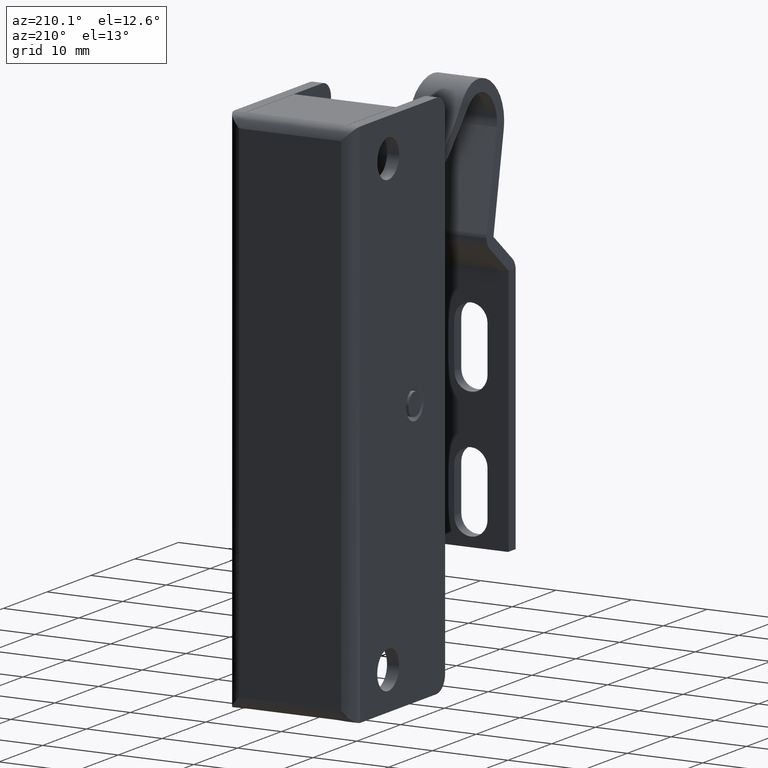
[diagram: clean part render]
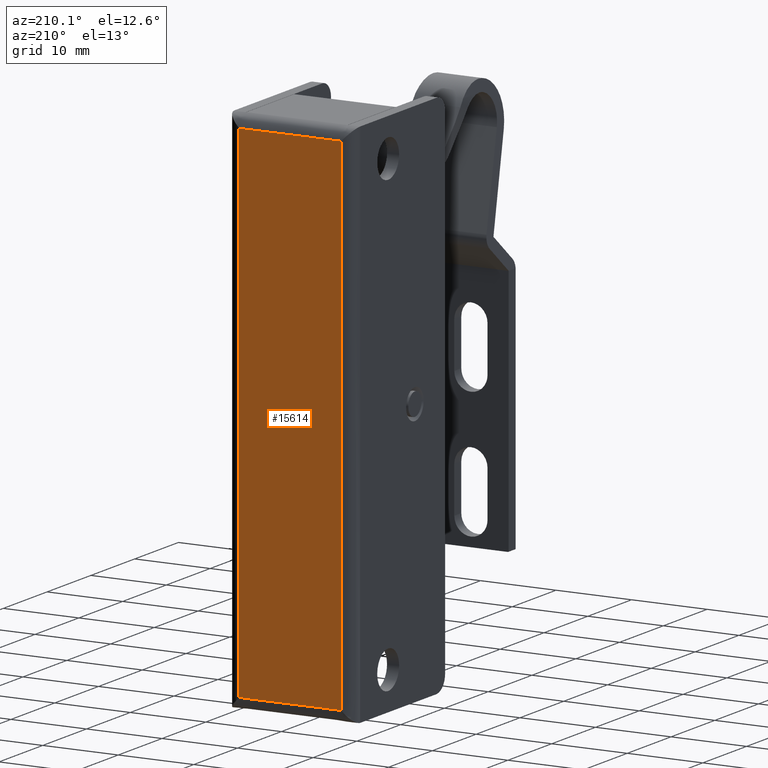
[diagram: same view with one face highlighted and labeled with its STEP entity id]
A machine part, auxiliary view. The second image highlights one B-rep face of the part: STEP entity #15614.
In plain terms, the highlighted face is a freeform B-spline surface patch.
Its self-contained STEP definition (entity closure, byte-faithful):
#14493=CARTESIAN_POINT('',(6.749997000000000,8.0,3.399999999999960));
#14494=VERTEX_POINT('',#14493);
#14508=CARTESIAN_POINT('',(-6.749997000000000,8.0,3.399999999999960));
#14509=VERTEX_POINT('',#14508);
#14510=CARTESIAN_POINT('',(-6.749997000000000,8.0,3.399999999999960));
#14511=CARTESIAN_POINT('',(6.749997000000000,8.0,3.399999999999960));
#14512=QUASI_UNIFORM_CURVE('',1,(#14510,#14511),.UNSPECIFIED.,.F.,.U.);
#14513=EDGE_CURVE('',#14509,#14494,#14512,.T.);
#14566=CARTESIAN_POINT('',(-6.749997000000000,8.0,-63.399999999999999));
#14567=VERTEX_POINT('',#14566);
#14585=CARTESIAN_POINT('',(6.749997000000000,8.0,-63.399999999999999));
#14586=VERTEX_POINT('',#14585);
#14587=CARTESIAN_POINT('',(6.749997000000000,8.0,-63.399999999999999));
#14588=CARTESIAN_POINT('',(-6.749997000000000,8.0,-63.399999999999999));
#14589=QUASI_UNIFORM_CURVE('',1,(#14587,#14588),.UNSPECIFIED.,.F.,.U.);
#14590=EDGE_CURVE('',#14586,#14567,#14589,.T.);
#14723=CARTESIAN_POINT('',(6.749997000000000,8.0,3.399999999999960));
#14724=CARTESIAN_POINT('',(6.749997000000000,8.0,-63.399999999999999));
#14725=QUASI_UNIFORM_CURVE('',1,(#14723,#14724),.UNSPECIFIED.,.F.,.U.);
#14726=EDGE_CURVE('',#14494,#14586,#14725,.T.);
#14746=CARTESIAN_POINT('',(-6.749997000000000,8.0,-63.399999999999999));
#14747=CARTESIAN_POINT('',(-6.749997000000000,8.0,3.399999999999960));
#14748=QUASI_UNIFORM_CURVE('',1,(#14746,#14747),.UNSPECIFIED.,.F.,.U.);
#14749=EDGE_CURVE('',#14567,#14509,#14748,.T.);
#15603=CARTESIAN_POINT('',(-7.424321800862678,8.0,6.736659870528598));
#15604=CARTESIAN_POINT('',(-7.424321800862678,8.0,-66.736661662244259));
#15605=CARTESIAN_POINT('',(7.424322042261382,8.0,6.736659870528598));
#15606=CARTESIAN_POINT('',(7.424322042261382,8.0,-66.736661662244259));
#15607=B_SPLINE_SURFACE_WITH_KNOTS('',1,1,((#15603,#15605),(#15604,#15606)),.UNSPECIFIED.,.F.,.F.,.U.,(2,2),(2,2),(0.0,73.473321532772857),(0.0,14.848643843124060),.UNSPECIFIED.);
#15608=ORIENTED_EDGE('',*,*,#14726,.T.);
#15609=ORIENTED_EDGE('',*,*,#14590,.T.);
#15610=ORIENTED_EDGE('',*,*,#14749,.T.);
#15611=ORIENTED_EDGE('',*,*,#14513,.T.);
#15612=EDGE_LOOP('',(#15608,#15609,#15610,#15611));
#15613=FACE_OUTER_BOUND('',#15612,.T.);
#15614=ADVANCED_FACE('',(#15613),#15607,.F.);